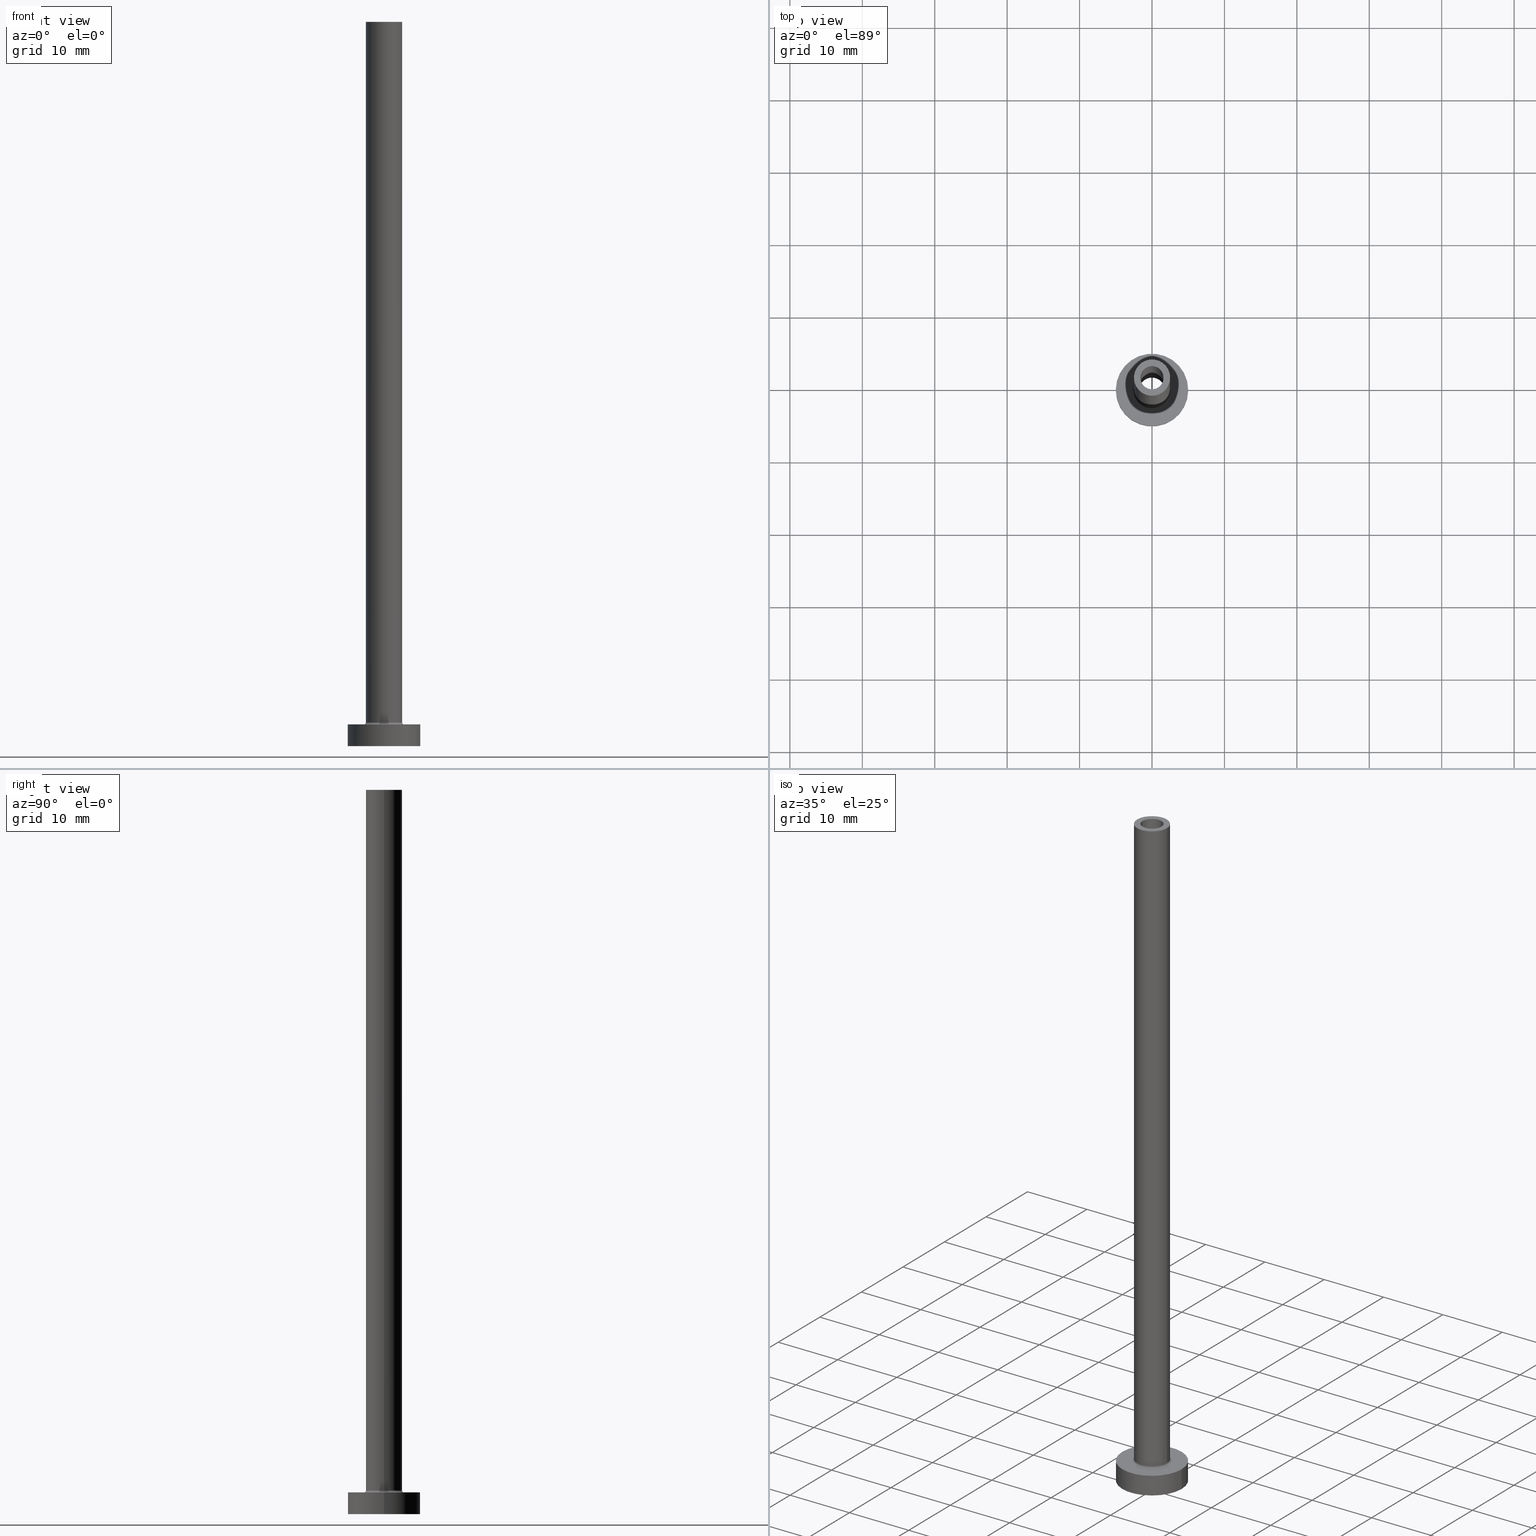
[diagram: canonical four-view strip — front | top / right | iso, engineering-drawing reading convention]
A machine part, canonical four-view strip (front | top / right | iso — engineering-drawing reading convention). The complete STEP part file that produces these views, byte-faithful:
ISO-10303-21;
HEADER;
FILE_DESCRIPTION (( 'STEP AP203' ),
    '1' );
FILE_NAME ('e2c4.STEP',
    '2023-02-13T12:03:21',
    ( '' ),
    ( '' ),
    'SwSTEP 2.0',
    'SolidWorks 2019',
    '' );
FILE_SCHEMA (( 'CONFIG_CONTROL_DESIGN' ));
ENDSEC;

DATA;
#1 = COORDINATED_UNIVERSAL_TIME_OFFSET ( 1, 0, .AHEAD. ) ;
#2 = DIRECTION ( 'NONE',  ( 1.000000000000000000, 0.000000000000000000, 0.000000000000000000 ) ) ;
#3 = AXIS2_PLACEMENT_3D ( 'NONE', #403, #211, #104 ) ;
#4 = DATE_TIME_ROLE ( 'creation_date' ) ;
#5 = APPLICATION_CONTEXT ( 'configuration controlled 3d designs of mechanical parts and assemblies' ) ;
#6 = ORIENTED_EDGE ( 'NONE', *, *, #325, .T. ) ;
#7 = PERSON_AND_ORGANIZATION ( #223, #154 ) ;
#8 = DIRECTION ( 'NONE',  ( 0.000000000000000000, 0.000000000000000000, 1.000000000000000000 ) ) ;
#9 = CARTESIAN_POINT ( 'NONE',  ( 0.000000000000000000, 0.000000000000000000, 100.0000000000000000 ) ) ;
#10 = PLANE ( 'NONE',  #70 ) ;
#11 = ORIENTED_EDGE ( 'NONE', *, *, #404, .F. ) ;
#12 = CIRCLE ( 'NONE', #27, 1.600000000000000089 ) ;
#13 = CARTESIAN_POINT ( 'NONE',  ( 1.600000000000000089, 1.959434878635764737E-16, 100.0000000000000000 ) ) ;
#14 = ORIENTED_EDGE ( 'NONE', *, *, #307, .T. ) ;
#15 = DIRECTION ( 'NONE',  ( 1.000000000000000000, 0.000000000000000000, 0.000000000000000000 ) ) ;
#16 = CARTESIAN_POINT ( 'NONE',  ( 0.000000000000000000, 0.000000000000000000, 3.000000000000000000 ) ) ;
#17 = DIRECTION ( 'NONE',  ( 0.000000000000000000, 0.000000000000000000, 1.000000000000000000 ) ) ;
#18 = AXIS2_PLACEMENT_3D ( 'NONE', #83, #49, #253 ) ;
#19 = CARTESIAN_POINT ( 'NONE',  ( -1.600000000000000089, 0.000000000000000000, 55.00000000000000711 ) ) ;
#20 = VERTEX_POINT ( 'NONE', #146 ) ;
#21 = LOCAL_TIME ( 13, 3, 21.00000000000000000, #278 ) ;
#22 = ADVANCED_FACE ( 'NONE', ( #396 ), #210, .T. ) ;
#23 = EDGE_LOOP ( 'NONE', ( #11, #257 ) ) ;
#24 = LINE ( 'NONE', #229, #262 ) ;
#25 = FACE_BOUND ( 'NONE', #184, .T. ) ;
#26 = VERTEX_POINT ( 'NONE', #82 ) ;
#27 = AXIS2_PLACEMENT_3D ( 'NONE', #130, #66, #270 ) ;
#28 = ORIENTED_EDGE ( 'NONE', *, *, #159, .T. ) ;
#29 = CC_DESIGN_DATE_AND_TIME_ASSIGNMENT ( #44, #358, ( #397 ) ) ;
#30 = ADVANCED_FACE ( 'NONE', ( #362 ), #407, .F. ) ;
#31 = FACE_OUTER_BOUND ( 'NONE', #41, .T. ) ;
#32 = CIRCLE ( 'NONE', #282, 0.2999999999999999334 ) ;
#33 = VERTEX_POINT ( 'NONE', #19 ) ;
#34 = CARTESIAN_POINT ( 'NONE',  ( -1.750000000000000000, 0.000000000000000000, 0.000000000000000000 ) ) ;
#35 = VECTOR ( 'NONE', #64, 1000.000000000000000 ) ;
#36 = CARTESIAN_POINT ( 'NONE',  ( 0.000000000000000000, 0.000000000000000000, 3.299999999999997158 ) ) ;
#37 = EDGE_CURVE ( 'NONE', #91, #33, #442, .T. ) ;
#38 = PERSON_AND_ORGANIZATION_ROLE ( 'design_supplier' ) ;
#39 = ORIENTED_EDGE ( 'NONE', *, *, #45, .F. ) ;
#40 = CIRCLE ( 'NONE', #291, 1.750000000000000000 ) ;
#41 = EDGE_LOOP ( 'NONE', ( #276, #14, #287, #68 ) ) ;
#42 = CARTESIAN_POINT ( 'NONE',  ( 0.000000000000000000, 0.000000000000000000, 100.0000000000000000 ) ) ;
#43 = VECTOR ( 'NONE', #209, 1000.000000000000000 ) ;
#44 = DATE_AND_TIME ( #393, #337 ) ;
#45 = EDGE_CURVE ( 'NONE', #20, #417, #258, .T. ) ;
#46 = ORIENTED_EDGE ( 'NONE', *, *, #413, .F. ) ;
#47 = DIRECTION ( 'NONE',  ( 1.000000000000000000, 0.000000000000000000, -0.000000000000000000 ) ) ;
#48 = ORIENTED_EDGE ( 'NONE', *, *, #325, .F. ) ;
#49 = DIRECTION ( 'NONE',  ( 0.000000000000000000, 0.000000000000000000, 1.000000000000000000 ) ) ;
#50 = VECTOR ( 'NONE', #272, 1000.000000000000000 ) ;
#51 = EDGE_CURVE ( 'NONE', #417, #20, #40, .T. ) ;
#52 = CARTESIAN_POINT ( 'NONE',  ( 5.000000000000000000, 6.123233995736766282E-16, 3.000000000000000000 ) ) ;
#53 = VERTEX_POINT ( 'NONE', #52 ) ;
#54 = CARTESIAN_POINT ( 'NONE',  ( 0.000000000000000000, 0.000000000000000000, 0.000000000000000000 ) ) ;
#55 = DIRECTION ( 'NONE',  ( 0.000000000000000000, 0.000000000000000000, 1.000000000000000000 ) ) ;
#56 = ORIENTED_EDGE ( 'NONE', *, *, #189, .T. ) ;
#57 = ADVANCED_FACE ( 'NONE', ( #114, #330 ), #119, .F. ) ;
#58 = EDGE_LOOP ( 'NONE', ( #353, #335 ) ) ;
#59 = CIRCLE ( 'NONE', #174, 2.500000000000000000 ) ;
#60 = CARTESIAN_POINT ( 'NONE',  ( 0.000000000000000000, 0.000000000000000000, 3.000000000000000000 ) ) ;
#61 = CYLINDRICAL_SURFACE ( 'NONE', #227, 1.750000000000000000 ) ;
#62 = FACE_OUTER_BOUND ( 'NONE', #222, .T. ) ;
#63 = DIRECTION ( 'NONE',  ( 0.000000000000000000, 0.000000000000000000, -1.000000000000000000 ) ) ;
#64 = DIRECTION ( 'NONE',  ( -0.000000000000000000, -0.000000000000000000, -1.000000000000000000 ) ) ;
#65 = AXIS2_PLACEMENT_3D ( 'NONE', #236, #454, #310 ) ;
#66 = DIRECTION ( 'NONE',  ( 0.000000000000000000, 0.000000000000000000, 1.000000000000000000 ) ) ;
#67 = ORIENTED_EDGE ( 'NONE', *, *, #189, .F. ) ;
#68 = ORIENTED_EDGE ( 'NONE', *, *, #428, .F. ) ;
#69 = PRODUCT_RELATED_PRODUCT_CATEGORY ( 'detail', '', ( #398 ) ) ;
#70 = AXIS2_PLACEMENT_3D ( 'NONE', #142, #394, #79 ) ;
#71 = APPROVAL_ROLE ( '' ) ;
#72 = EDGE_LOOP ( 'NONE', ( #138, #152, #401, #240 ) ) ;
#73 = EDGE_LOOP ( 'NONE', ( #161, #109 ) ) ;
#74 = AXIS2_PLACEMENT_3D ( 'NONE', #9, #360, #144 ) ;
#75 = DATE_AND_TIME ( #237, #423 ) ;
#76 = LINE ( 'NONE', #203, #43 ) ;
#77 = EDGE_LOOP ( 'NONE', ( #212, #370, #56, #100 ) ) ;
#78 = AXIS2_PLACEMENT_3D ( 'NONE', #80, #55, #365 ) ;
#79 = DIRECTION ( 'NONE',  ( 1.000000000000000000, 0.000000000000000000, -0.000000000000000000 ) ) ;
#80 = CARTESIAN_POINT ( 'NONE',  ( 0.000000000000000000, 0.000000000000000000, 0.000000000000000000 ) ) ;
#81 = CARTESIAN_POINT ( 'NONE',  ( 0.000000000000000000, 0.000000000000000000, 3.299999999999997158 ) ) ;
#82 = CARTESIAN_POINT ( 'NONE',  ( -2.500000000000000000, 0.000000000000000000, 100.0000000000000000 ) ) ;
#83 = CARTESIAN_POINT ( 'NONE',  ( 0.000000000000000000, 0.000000000000000000, 3.000000000000000000 ) ) ;
#84 = VERTEX_POINT ( 'NONE', #320 ) ;
#85 = CARTESIAN_POINT ( 'NONE',  ( 0.000000000000000000, 0.000000000000000000, 3.299999999999997158 ) ) ;
#86 = LINE ( 'NONE', #443, #435 ) ;
#87 = AXIS2_PLACEMENT_3D ( 'NONE', #341, #329, #15 ) ;
#88 = ORIENTED_EDGE ( 'NONE', *, *, #387, .F. ) ;
#89 = DIRECTION ( 'NONE',  ( -1.000000000000000000, 0.000000000000000000, 0.000000000000000000 ) ) ;
#90 = CYLINDRICAL_SURFACE ( 'NONE', #214, 2.500000000000000000 ) ;
#91 = VERTEX_POINT ( 'NONE', #409 ) ;
#92 = CARTESIAN_POINT ( 'NONE',  ( 0.000000000000000000, 0.000000000000000000, 3.000000000000000000 ) ) ;
#93 = DIRECTION ( 'NONE',  ( 1.000000000000000000, 0.000000000000000000, 0.000000000000000000 ) ) ;
#94 = ORIENTED_EDGE ( 'NONE', *, *, #283, .F. ) ;
#95 = FACE_OUTER_BOUND ( 'NONE', #175, .T. ) ;
#96 = ADVANCED_FACE ( 'NONE', ( #178 ), #288, .F. ) ;
#97 = ORIENTED_EDGE ( 'NONE', *, *, #165, .F. ) ;
#98 = CARTESIAN_POINT ( 'NONE',  ( 0.000000000000000000, 0.000000000000000000, 3.299999999999997158 ) ) ;
#99 = CIRCLE ( 'NONE', #381, 1.600000000000000089 ) ;
#100 = ORIENTED_EDGE ( 'NONE', *, *, #51, .T. ) ;
#101 = DIRECTION ( 'NONE',  ( 0.000000000000000000, 0.000000000000000000, 1.000000000000000000 ) ) ;
#102 = PRODUCT_DEFINITION ( 'NEZN�M�', '', #206, #149 ) ;
#103 = DIRECTION ( 'NONE',  ( -0.000000000000000000, -0.000000000000000000, -1.000000000000000000 ) ) ;
#104 = DIRECTION ( 'NONE',  ( -1.000000000000000000, 0.000000000000000000, 0.000000000000000000 ) ) ;
#105 = AXIS2_PLACEMENT_3D ( 'NONE', #60, #342, #228 ) ;
#106 = EDGE_CURVE ( 'NONE', #53, #416, #245, .T. ) ;
#107 = FACE_OUTER_BOUND ( 'NONE', #414, .T. ) ;
#108 = DIRECTION ( 'NONE',  ( 0.000000000000000000, 0.000000000000000000, 1.000000000000000000 ) ) ;
#109 = ORIENTED_EDGE ( 'NONE', *, *, #106, .T. ) ;
#110 = LINE ( 'NONE', #422, #50 ) ;
#111 = DIRECTION ( 'NONE',  ( -0.000000000000000000, -0.000000000000000000, -1.000000000000000000 ) ) ;
#112 = CC_DESIGN_PERSON_AND_ORGANIZATION_ASSIGNMENT ( #312, #243, ( #397 ) ) ;
#113 = ORIENTED_EDGE ( 'NONE', *, *, #139, .T. ) ;
#114 = FACE_BOUND ( 'NONE', #380, .T. ) ;
#115 = DIRECTION ( 'NONE',  ( 0.000000000000000000, -1.000000000000000000, 0.000000000000000000 ) ) ;
#116 = EDGE_LOOP ( 'NONE', ( #351, #457, #311, #46 ) ) ;
#117 = CARTESIAN_POINT ( 'NONE',  ( 2.799999999999999822, 0.000000000000000000, 3.299999999999997158 ) ) ;
#118 = DIRECTION ( 'NONE',  ( -0.000000000000000000, -0.000000000000000000, -1.000000000000000000 ) ) ;
#119 = PLANE ( 'NONE',  #266 ) ;
#120 = ORIENTED_EDGE ( 'NONE', *, *, #347, .F. ) ;
#121 = APPLICATION_PROTOCOL_DEFINITION ( 'international standard', 'config_control_design', 1994, #193 ) ;
#122 = FACE_OUTER_BOUND ( 'NONE', #444, .T. ) ;
#123 = EDGE_CURVE ( 'NONE', #260, #84, #224, .T. ) ;
#124 = VERTEX_POINT ( 'NONE', #13 ) ;
#125 = CIRCLE ( 'NONE', #352, 1.600000000000000089 ) ;
#126 = EDGE_CURVE ( 'NONE', #260, #20, #86, .T. ) ;
#127 = CARTESIAN_POINT ( 'NONE',  ( -2.799999999999999822, 3.429011037612589276E-16, 2.999999999999998668 ) ) ;
#128 = CC_DESIGN_APPROVAL ( #134, ( #206 ) ) ;
#129 = CC_DESIGN_APPROVAL ( #264, ( #102 ) ) ;
#130 = CARTESIAN_POINT ( 'NONE',  ( 0.000000000000000000, 0.000000000000000000, 55.00000000000000711 ) ) ;
#131 = PLANE ( 'NONE',  #314 ) ;
#132 = VERTEX_POINT ( 'NONE', #216 ) ;
#133 = APPROVAL_STATUS ( 'not_yet_approved' ) ;
#134 = APPROVAL ( #315, 'NEUR�EN�' ) ;
#135 = ORIENTED_EDGE ( 'NONE', *, *, #159, .F. ) ;
#136 = CIRCLE ( 'NONE', #368, 2.799999999999999822 ) ;
#137 = PERSON_AND_ORGANIZATION ( #223, #154 ) ;
#138 = ORIENTED_EDGE ( 'NONE', *, *, #387, .T. ) ;
#139 = EDGE_CURVE ( 'NONE', #331, #204, #32, .T. ) ;
#140 = MECHANICAL_CONTEXT ( 'NONE', #5, 'mechanical' ) ;
#141 = APPROVAL_DATE_TIME ( #354, #134 ) ;
#142 = CARTESIAN_POINT ( 'NONE',  ( 0.000000000000000000, 0.000000000000000000, 3.000000000000000000 ) ) ;
#143 = CARTESIAN_POINT ( 'NONE',  ( 0.000000000000000000, 0.000000000000000000, 3.000000000000000000 ) ) ;
#144 = DIRECTION ( 'NONE',  ( -1.000000000000000000, 0.000000000000000000, 0.000000000000000000 ) ) ;
#145 = EDGE_CURVE ( 'NONE', #124, #91, #99, .T. ) ;
#146 = CARTESIAN_POINT ( 'NONE',  ( 1.750000000000000000, 2.143131898507868297E-16, 0.000000000000000000 ) ) ;
#147 = AXIS2_PLACEMENT_3D ( 'NONE', #277, #103, #386 ) ;
#148 = ADVANCED_FACE ( 'NONE', ( #415 ), #61, .F. ) ;
#149 = DESIGN_CONTEXT ( 'detailed design', #193, 'design' ) ;
#150 = CARTESIAN_POINT ( 'NONE',  ( -1.600000000000000089, 0.000000000000000000, 100.0000000000000000 ) ) ;
#151 =( NAMED_UNIT ( * ) PLANE_ANGLE_UNIT ( ) SI_UNIT ( $, .RADIAN. ) );
#152 = ORIENTED_EDGE ( 'NONE', *, *, #235, .T. ) ;
#153 = EDGE_CURVE ( 'NONE', #204, #406, #136, .T. ) ;
#154 = ORGANIZATION ( 'NEUR�EN�', 'NEUR�EN�', '' ) ;
#155 = ORIENTED_EDGE ( 'NONE', *, *, #426, .T. ) ;
#156 = DIRECTION ( 'NONE',  ( -1.000000000000000000, 0.000000000000000000, 0.000000000000000000 ) ) ;
#157 = DIRECTION ( 'NONE',  ( 0.000000000000000000, 0.000000000000000000, 1.000000000000000000 ) ) ;
#158 = ORIENTED_EDGE ( 'NONE', *, *, #426, .F. ) ;
#159 = EDGE_CURVE ( 'NONE', #173, #331, #59, .T. ) ;
#160 = DIRECTION ( 'NONE',  ( 0.000000000000000000, 0.000000000000000000, 1.000000000000000000 ) ) ;
#161 = ORIENTED_EDGE ( 'NONE', *, *, #249, .T. ) ;
#162 = CIRCLE ( 'NONE', #65, 5.000000000000000000 ) ;
#163 = CARTESIAN_POINT ( 'NONE',  ( 2.799999999999999822, 0.000000000000000000, 2.999999999999998668 ) ) ;
#164 = AXIS2_PLACEMENT_3D ( 'NONE', #438, #251, #180 ) ;
#165 = EDGE_CURVE ( 'NONE', #26, #132, #167, .T. ) ;
#166 = PERSON_AND_ORGANIZATION ( #223, #154 ) ;
#167 = CIRCLE ( 'NONE', #181, 2.500000000000000000 ) ;
#168 = APPROVAL_DATE_TIME ( #75, #264 ) ;
#169 = ORIENTED_EDGE ( 'NONE', *, *, #379, .T. ) ;
#170 = CARTESIAN_POINT ( 'NONE',  ( 0.000000000000000000, 0.000000000000000000, 100.0000000000000000 ) ) ;
#171 = SECURITY_CLASSIFICATION_LEVEL ( 'unclassified' ) ;
#172 = ADVANCED_FACE ( 'NONE', ( #25, #122 ), #294, .T. ) ;
#173 = VERTEX_POINT ( 'NONE', #301 ) ;
#174 = AXIS2_PLACEMENT_3D ( 'NONE', #98, #17, #192 ) ;
#175 = EDGE_LOOP ( 'NONE', ( #430, #97, #238, #28 ) ) ;
#176 = CC_DESIGN_PERSON_AND_ORGANIZATION_ASSIGNMENT ( #434, #38, ( #206 ) ) ;
#177 = EDGE_CURVE ( 'NONE', #132, #331, #255, .T. ) ;
#178 = FACE_OUTER_BOUND ( 'NONE', #72, .T. ) ;
#179 = DIRECTION ( 'NONE',  ( 1.000000000000000000, 0.000000000000000000, 0.000000000000000000 ) ) ;
#180 = DIRECTION ( 'NONE',  ( 1.000000000000000000, 0.000000000000000000, 0.000000000000000000 ) ) ;
#181 = AXIS2_PLACEMENT_3D ( 'NONE', #185, #332, #343 ) ;
#182 = CARTESIAN_POINT ( 'NONE',  ( 1.600000000000000089, 1.959434878635764737E-16, 55.00000000000000711 ) ) ;
#183 = DIRECTION ( 'NONE',  ( -1.000000000000000000, 0.000000000000000000, 0.000000000000000000 ) ) ;
#184 = EDGE_LOOP ( 'NONE', ( #88, #373 ) ) ;
#185 = CARTESIAN_POINT ( 'NONE',  ( 0.000000000000000000, 0.000000000000000000, 100.0000000000000000 ) ) ;
#186 = APPROVAL_STATUS ( 'not_yet_approved' ) ;
#187 = DIRECTION ( 'NONE',  ( 1.000000000000000000, 0.000000000000000000, 0.000000000000000000 ) ) ;
#188 = CARTESIAN_POINT ( 'NONE',  ( 2.500000000000000000, 3.061616997868382648E-16, 100.0000000000000000 ) ) ;
#189 = EDGE_CURVE ( 'NONE', #84, #417, #24, .T. ) ;
#190 = CIRCLE ( 'NONE', #419, 5.000000000000000000 ) ;
#191 = ORIENTED_EDGE ( 'NONE', *, *, #379, .F. ) ;
#192 = DIRECTION ( 'NONE',  ( 1.000000000000000000, 0.000000000000000000, 0.000000000000000000 ) ) ;
#193 = APPLICATION_CONTEXT ( 'configuration controlled 3d designs of mechanical parts and assemblies' ) ;
#194 = AXIS2_PLACEMENT_3D ( 'NONE', #254, #372, #179 ) ;
#195 = ORIENTED_EDGE ( 'NONE', *, *, #433, .F. ) ;
#196 = AXIS2_PLACEMENT_3D ( 'NONE', #336, #160, #448 ) ;
#197 = CARTESIAN_POINT ( 'NONE',  ( 0.000000000000000000, 0.000000000000000000, 100.0000000000000000 ) ) ;
#198 = ADVANCED_FACE ( 'NONE', ( #62 ), #265, .F. ) ;
#199 = EDGE_LOOP ( 'NONE', ( #195, #248, #6, #120 ) ) ;
#200 = ORIENTED_EDGE ( 'NONE', *, *, #45, .T. ) ;
#201 = MANIFOLD_SOLID_BREP ( 'Odebrat vysunut�m4', #376 ) ;
#202 = PERSON_AND_ORGANIZATION_ROLE ( 'creator' ) ;
#203 = CARTESIAN_POINT ( 'NONE',  ( 5.000000000000000000, 6.123233995736766282E-16, 3.000000000000000000 ) ) ;
#204 = VERTEX_POINT ( 'NONE', #163 ) ;
#205 = PERSON_AND_ORGANIZATION_ROLE ( 'design_owner' ) ;
#206 = PRODUCT_DEFINITION_FORMATION_WITH_SPECIFIED_SOURCE ( 'LIBOVOLN�', '', #398, .NOT_KNOWN. ) ;
#207 = CC_DESIGN_SECURITY_CLASSIFICATION ( #397, ( #206 ) ) ;
#208 = ADVANCED_FACE ( 'NONE', ( #306 ), #297, .T. ) ;
#209 = DIRECTION ( 'NONE',  ( -0.000000000000000000, -0.000000000000000000, -1.000000000000000000 ) ) ;
#210 = CYLINDRICAL_SURFACE ( 'NONE', #230, 5.000000000000000000 ) ;
#211 = DIRECTION ( 'NONE',  ( 0.000000000000000000, 0.000000000000000000, -1.000000000000000000 ) ) ;
#212 = ORIENTED_EDGE ( 'NONE', *, *, #126, .F. ) ;
#213 = AXIS2_PLACEMENT_3D ( 'NONE', #85, #364, #319 ) ;
#214 = AXIS2_PLACEMENT_3D ( 'NONE', #42, #111, #156 ) ;
#215 = DIRECTION ( 'NONE',  ( 1.000000000000000000, 0.000000000000000000, 0.000000000000000000 ) ) ;
#216 = CARTESIAN_POINT ( 'NONE',  ( 2.500000000000000000, 3.061616997868382648E-16, 100.0000000000000000 ) ) ;
#217 = CC_DESIGN_DATE_AND_TIME_ASSIGNMENT ( #271, #4, ( #102 ) ) ;
#218 = DIRECTION ( 'NONE',  ( -0.000000000000000000, -0.000000000000000000, -1.000000000000000000 ) ) ;
#219 = EDGE_LOOP ( 'NONE', ( #158, #48, #113, #191 ) ) ;
#220 =( LENGTH_UNIT ( ) NAMED_UNIT ( * ) SI_UNIT ( .MILLI., .METRE. ) );
#221 = DIRECTION ( 'NONE',  ( -1.000000000000000000, 0.000000000000000000, 0.000000000000000000 ) ) ;
#222 = EDGE_LOOP ( 'NONE', ( #388, #355, #200, #67 ) ) ;
#223 = PERSON ( 'NEUR�EN�', 'NEUR�EN�', 'NEUR�EN�', ('NEUR�EN�'), ('NEUR�EN�'), ('NEUR�EN�') ) ;
#224 = CIRCLE ( 'NONE', #164, 1.750000000000000000 ) ;
#225 = ORIENTED_EDGE ( 'NONE', *, *, #51, .F. ) ;
#226 = DIRECTION ( 'NONE',  ( 1.000000000000000000, 0.000000000000000000, -0.000000000000000000 ) ) ;
#227 = AXIS2_PLACEMENT_3D ( 'NONE', #384, #63, #89 ) ;
#228 = DIRECTION ( 'NONE',  ( 1.000000000000000000, 0.000000000000000000, 0.000000000000000000 ) ) ;
#229 = CARTESIAN_POINT ( 'NONE',  ( -1.750000000000000000, 0.000000000000000000, 59.94974746830583712 ) ) ;
#230 = AXIS2_PLACEMENT_3D ( 'NONE', #143, #431, #221 ) ;
#231 = APPROVAL ( #133, 'NEUR�EN�' ) ;
#232 = ORIENTED_EDGE ( 'NONE', *, *, #165, .T. ) ;
#233 = VECTOR ( 'NONE', #327, 1000.000000000000000 ) ;
#234 = FACE_BOUND ( 'NONE', #58, .T. ) ;
#235 = EDGE_CURVE ( 'NONE', #124, #298, #289, .T. ) ;
#236 = CARTESIAN_POINT ( 'NONE',  ( 0.000000000000000000, 0.000000000000000000, 0.000000000000000000 ) ) ;
#237 = CALENDAR_DATE ( 2023, 13, 2 ) ;
#238 = ORIENTED_EDGE ( 'NONE', *, *, #347, .T. ) ;
#239 = AXIS2_PLACEMENT_3D ( 'NONE', #405, #334, #293 ) ;
#240 = ORIENTED_EDGE ( 'NONE', *, *, #37, .F. ) ;
#241 = DIRECTION ( 'NONE',  ( 0.000000000000000000, 0.000000000000000000, 1.000000000000000000 ) ) ;
#242 = EDGE_LOOP ( 'NONE', ( #135, #155, #410, #317 ) ) ;
#243 = PERSON_AND_ORGANIZATION_ROLE ( 'classification_officer' ) ;
#244 = EDGE_LOOP ( 'NONE', ( #279, #328, #453, #427 ) ) ;
#245 = CIRCLE ( 'NONE', #18, 5.000000000000000000 ) ;
#246 = CARTESIAN_POINT ( 'NONE',  ( -2.500000000000000000, 0.000000000000000000, 100.0000000000000000 ) ) ;
#247 = APPROVAL_PERSON_ORGANIZATION ( #137, #134, #71 ) ;
#248 = ORIENTED_EDGE ( 'NONE', *, *, #177, .T. ) ;
#249 = EDGE_CURVE ( 'NONE', #416, #53, #190, .T. ) ;
#250 = DIRECTION ( 'NONE',  ( 1.000000000000000000, 0.000000000000000000, 0.000000000000000000 ) ) ;
#251 = DIRECTION ( 'NONE',  ( 0.000000000000000000, 0.000000000000000000, 1.000000000000000000 ) ) ;
#252 = VECTOR ( 'NONE', #361, 1000.000000000000000 ) ;
#253 = DIRECTION ( 'NONE',  ( 1.000000000000000000, 0.000000000000000000, 0.000000000000000000 ) ) ;
#254 = CARTESIAN_POINT ( 'NONE',  ( 0.000000000000000000, 0.000000000000000000, 55.00000000000000711 ) ) ;
#255 = LINE ( 'NONE', #188, #35 ) ;
#256 = EDGE_CURVE ( 'NONE', #395, #273, #269, .T. ) ;
#257 = ORIENTED_EDGE ( 'NONE', *, *, #256, .F. ) ;
#258 = CIRCLE ( 'NONE', #350, 1.750000000000000000 ) ;
#259 = EDGE_CURVE ( 'NONE', #33, #298, #451, .T. ) ;
#260 = VERTEX_POINT ( 'NONE', #299 ) ;
#261 = APPROVAL_DATE_TIME ( #377, #231 ) ;
#262 = VECTOR ( 'NONE', #383, 1000.000000000000000 ) ;
#263 = DIRECTION ( 'NONE',  ( -1.000000000000000000, 0.000000000000000000, 0.000000000000000000 ) ) ;
#264 = APPROVAL ( #186, 'NEUR�EN�' ) ;
#265 = CYLINDRICAL_SURFACE ( 'NONE', #441, 1.750000000000000000 ) ;
#266 = AXIS2_PLACEMENT_3D ( 'NONE', #285, #326, #47 ) ;
#267 = ORIENTED_EDGE ( 'NONE', *, *, #123, .F. ) ;
#268 = DIRECTION ( 'NONE',  ( -1.000000000000000000, 1.224646799147353207E-16, 0.000000000000000000 ) ) ;
#269 = CIRCLE ( 'NONE', #78, 5.000000000000000000 ) ;
#270 = DIRECTION ( 'NONE',  ( 1.000000000000000000, 0.000000000000000000, 0.000000000000000000 ) ) ;
#271 = DATE_AND_TIME ( #313, #399 ) ;
#272 = DIRECTION ( 'NONE',  ( -0.000000000000000000, -0.000000000000000000, -1.000000000000000000 ) ) ;
#273 = VERTEX_POINT ( 'NONE', #402 ) ;
#274 = APPROVAL_ROLE ( '' ) ;
#275 =( GEOMETRIC_REPRESENTATION_CONTEXT ( 3 ) GLOBAL_UNCERTAINTY_ASSIGNED_CONTEXT ( ( #436 ) ) GLOBAL_UNIT_ASSIGNED_CONTEXT ( ( #220, #151, #280 ) ) REPRESENTATION_CONTEXT ( 'NONE', 'WORKASPACE' ) );
#276 = ORIENTED_EDGE ( 'NONE', *, *, #106, .F. ) ;
#277 = CARTESIAN_POINT ( 'NONE',  ( 0.000000000000000000, 0.000000000000000000, 3.000000000000000000 ) ) ;
#278 = COORDINATED_UNIVERSAL_TIME_OFFSET ( 1, 0, .AHEAD. ) ;
#279 = ORIENTED_EDGE ( 'NONE', *, *, #307, .F. ) ;
#280 =( NAMED_UNIT ( * ) SI_UNIT ( $, .STERADIAN. ) SOLID_ANGLE_UNIT ( ) );
#281 = COORDINATED_UNIVERSAL_TIME_OFFSET ( 1, 0, .AHEAD. ) ;
#282 = AXIS2_PLACEMENT_3D ( 'NONE', #117, #115, #412 ) ;
#283 = EDGE_CURVE ( 'NONE', #84, #260, #338, .T. ) ;
#284 = CIRCLE ( 'NONE', #105, 2.799999999999999822 ) ;
#285 = CARTESIAN_POINT ( 'NONE',  ( 0.000000000000000000, 0.000000000000000000, 0.000000000000000000 ) ) ;
#286 = FACE_BOUND ( 'NONE', #323, .T. ) ;
#287 = ORIENTED_EDGE ( 'NONE', *, *, #256, .T. ) ;
#288 = CYLINDRICAL_SURFACE ( 'NONE', #74, 1.600000000000000089 ) ;
#289 = LINE ( 'NONE', #339, #233 ) ;
#290 = APPLICATION_PROTOCOL_DEFINITION ( 'international standard', 'config_control_design', 1994, #5 ) ;
#291 = AXIS2_PLACEMENT_3D ( 'NONE', #54, #408, #215 ) ;
#292 = CARTESIAN_POINT ( 'NONE',  ( 0.000000000000000000, 0.000000000000000000, 0.000000000000000000 ) ) ;
#293 = DIRECTION ( 'NONE',  ( 1.000000000000000000, 0.000000000000000000, 0.000000000000000000 ) ) ;
#294 = PLANE ( 'NONE',  #196 ) ;
#295 = CC_DESIGN_PERSON_AND_ORGANIZATION_ASSIGNMENT ( #446, #205, ( #398 ) ) ;
#296 = AXIS2_PLACEMENT_3D ( 'NONE', #378, #218, #183 ) ;
#297 = CYLINDRICAL_SURFACE ( 'NONE', #296, 2.500000000000000000 ) ;
#298 = VERTEX_POINT ( 'NONE', #182 ) ;
#299 = CARTESIAN_POINT ( 'NONE',  ( 1.750000000000000000, 2.143131898507868297E-16, 55.00000000000000711 ) ) ;
#300 = DIRECTION ( 'NONE',  ( 1.000000000000000000, 0.000000000000000000, 0.000000000000000000 ) ) ;
#301 = CARTESIAN_POINT ( 'NONE',  ( -2.500000000000000000, 0.000000000000000000, 3.299999999999997158 ) ) ;
#302 = CIRCLE ( 'NONE', #425, 2.500000000000000000 ) ;
#303 = PRODUCT_DEFINITION_SHAPE ( 'NONE', 'NONE',  #102 ) ;
#304 = ADVANCED_FACE ( 'NONE', ( #286, #321 ), #10, .T. ) ;
#305 = SHAPE_DEFINITION_REPRESENTATION ( #303, #344 ) ;
#306 = FACE_OUTER_BOUND ( 'NONE', #199, .T. ) ;
#307 = EDGE_CURVE ( 'NONE', #53, #395, #76, .T. ) ;
#308 = CALENDAR_DATE ( 2023, 13, 2 ) ;
#309 = CIRCLE ( 'NONE', #449, 2.500000000000000000 ) ;
#310 = DIRECTION ( 'NONE',  ( 1.000000000000000000, 0.000000000000000000, 0.000000000000000000 ) ) ;
#311 = ORIENTED_EDGE ( 'NONE', *, *, #37, .T. ) ;
#312 = PERSON_AND_ORGANIZATION ( #223, #154 ) ;
#313 = CALENDAR_DATE ( 2023, 13, 2 ) ;
#314 = AXIS2_PLACEMENT_3D ( 'NONE', #424, #450, #226 ) ;
#315 = APPROVAL_STATUS ( 'not_yet_approved' ) ;
#316 = DIRECTION ( 'NONE',  ( 1.000000000000000000, 0.000000000000000000, 0.000000000000000000 ) ) ;
#317 = ORIENTED_EDGE ( 'NONE', *, *, #139, .F. ) ;
#318 = FACE_OUTER_BOUND ( 'NONE', #116, .T. ) ;
#319 = DIRECTION ( 'NONE',  ( 1.000000000000000000, 0.000000000000000000, 0.000000000000000000 ) ) ;
#320 = CARTESIAN_POINT ( 'NONE',  ( -1.750000000000000000, 0.000000000000000000, 55.00000000000000711 ) ) ;
#321 = FACE_OUTER_BOUND ( 'NONE', #73, .T. ) ;
#322 = CARTESIAN_POINT ( 'NONE',  ( 2.500000000000000000, 3.061616997868382648E-16, 3.299999999999997158 ) ) ;
#323 = EDGE_LOOP ( 'NONE', ( #447, #169 ) ) ;
#324 = AXIS2_PLACEMENT_3D ( 'NONE', #36, #108, #349 ) ;
#325 = EDGE_CURVE ( 'NONE', #331, #173, #309, .T. ) ;
#326 = DIRECTION ( 'NONE',  ( 0.000000000000000000, 0.000000000000000000, 1.000000000000000000 ) ) ;
#327 = DIRECTION ( 'NONE',  ( 0.000000000000000000, 0.000000000000000000, -1.000000000000000000 ) ) ;
#328 = ORIENTED_EDGE ( 'NONE', *, *, #249, .F. ) ;
#329 = DIRECTION ( 'NONE',  ( 0.000000000000000000, 0.000000000000000000, 1.000000000000000000 ) ) ;
#330 = FACE_OUTER_BOUND ( 'NONE', #23, .T. ) ;
#331 = VERTEX_POINT ( 'NONE', #322 ) ;
#332 = DIRECTION ( 'NONE',  ( 0.000000000000000000, 0.000000000000000000, 1.000000000000000000 ) ) ;
#333 = COORDINATED_UNIVERSAL_TIME_OFFSET ( 1, 0, .AHEAD. ) ;
#334 = DIRECTION ( 'NONE',  ( 0.000000000000000000, 0.000000000000000000, 1.000000000000000000 ) ) ;
#335 = ORIENTED_EDGE ( 'NONE', *, *, #413, .T. ) ;
#336 = CARTESIAN_POINT ( 'NONE',  ( 0.000000000000000000, 0.000000000000000000, 100.0000000000000000 ) ) ;
#337 = LOCAL_TIME ( 13, 3, 21.00000000000000000, #1 ) ;
#338 = CIRCLE ( 'NONE', #194, 1.750000000000000000 ) ;
#339 = CARTESIAN_POINT ( 'NONE',  ( 1.600000000000000089, 1.959434878635764737E-16, 100.0000000000000000 ) ) ;
#340 = DIRECTION ( 'NONE',  ( 1.000000000000000000, 0.000000000000000000, 0.000000000000000000 ) ) ;
#341 = CARTESIAN_POINT ( 'NONE',  ( 0.000000000000000000, 0.000000000000000000, 0.000000000000000000 ) ) ;
#342 = DIRECTION ( 'NONE',  ( -0.000000000000000000, -0.000000000000000000, -1.000000000000000000 ) ) ;
#343 = DIRECTION ( 'NONE',  ( 1.000000000000000000, 0.000000000000000000, 0.000000000000000000 ) ) ;
#344 = ADVANCED_BREP_SHAPE_REPRESENTATION ( 'e2c4', ( #201, #87 ), #275 ) ;
#345 = DIRECTION ( 'NONE',  ( 0.000000000000000000, 0.000000000000000000, -1.000000000000000000 ) ) ;
#346 = CARTESIAN_POINT ( 'NONE',  ( 0.000000000000000000, 0.000000000000000000, 59.94974746830583712 ) ) ;
#347 = EDGE_CURVE ( 'NONE', #26, #173, #437, .T. ) ;
#348 = CARTESIAN_POINT ( 'NONE',  ( -5.000000000000000000, 0.000000000000000000, 3.000000000000000000 ) ) ;
#349 = DIRECTION ( 'NONE',  ( 1.000000000000000000, 0.000000000000000000, 0.000000000000000000 ) ) ;
#350 = AXIS2_PLACEMENT_3D ( 'NONE', #292, #118, #250 ) ;
#351 = ORIENTED_EDGE ( 'NONE', *, *, #235, .F. ) ;
#352 = AXIS2_PLACEMENT_3D ( 'NONE', #170, #356, #2 ) ;
#353 = ORIENTED_EDGE ( 'NONE', *, *, #259, .T. ) ;
#354 = DATE_AND_TIME ( #308, #21 ) ;
#355 = ORIENTED_EDGE ( 'NONE', *, *, #126, .T. ) ;
#356 = DIRECTION ( 'NONE',  ( 0.000000000000000000, 0.000000000000000000, 1.000000000000000000 ) ) ;
#357 = COORDINATED_UNIVERSAL_TIME_OFFSET ( 1, 0, .AHEAD. ) ;
#358 = DATE_TIME_ROLE ( 'classification_date' ) ;
#359 = APPROVAL_PERSON_ORGANIZATION ( #411, #264, #371 ) ;
#360 = DIRECTION ( 'NONE',  ( 0.000000000000000000, 0.000000000000000000, -1.000000000000000000 ) ) ;
#361 = DIRECTION ( 'NONE',  ( -0.000000000000000000, -0.000000000000000000, -1.000000000000000000 ) ) ;
#362 = FACE_OUTER_BOUND ( 'NONE', #242, .T. ) ;
#363 = ADVANCED_FACE ( 'NONE', ( #318 ), #440, .F. ) ;
#364 = DIRECTION ( 'NONE',  ( 0.000000000000000000, 0.000000000000000000, 1.000000000000000000 ) ) ;
#365 = DIRECTION ( 'NONE',  ( 1.000000000000000000, 0.000000000000000000, 0.000000000000000000 ) ) ;
#366 = ORIENTED_EDGE ( 'NONE', *, *, #433, .T. ) ;
#367 = TOROIDAL_SURFACE ( 'NONE', #324, 2.799999999999999822, 0.2999999999999999889 ) ;
#368 = AXIS2_PLACEMENT_3D ( 'NONE', #92, #374, #300 ) ;
#369 = DIRECTION ( 'NONE',  ( 0.000000000000000000, 0.000000000000000000, -1.000000000000000000 ) ) ;
#370 = ORIENTED_EDGE ( 'NONE', *, *, #123, .T. ) ;
#371 = APPROVAL_ROLE ( '' ) ;
#372 = DIRECTION ( 'NONE',  ( 0.000000000000000000, 0.000000000000000000, 1.000000000000000000 ) ) ;
#373 = ORIENTED_EDGE ( 'NONE', *, *, #145, .F. ) ;
#374 = DIRECTION ( 'NONE',  ( -0.000000000000000000, -0.000000000000000000, -1.000000000000000000 ) ) ;
#375 = ADVANCED_FACE ( 'NONE', ( #234, #107 ), #131, .F. ) ;
#376 = CLOSED_SHELL ( 'NONE', ( #96, #198, #30, #208, #392, #22, #304, #57, #455, #172, #385, #148, #375, #363 ) ) ;
#377 = DATE_AND_TIME ( #452, #439 ) ;
#378 = CARTESIAN_POINT ( 'NONE',  ( 0.000000000000000000, 0.000000000000000000, 100.0000000000000000 ) ) ;
#379 = EDGE_CURVE ( 'NONE', #406, #204, #284, .T. ) ;
#380 = EDGE_LOOP ( 'NONE', ( #225, #39 ) ) ;
#381 = AXIS2_PLACEMENT_3D ( 'NONE', #432, #101, #340 ) ;
#382 = CC_DESIGN_PERSON_AND_ORGANIZATION_ASSIGNMENT ( #429, #459, ( #206 ) ) ;
#383 = DIRECTION ( 'NONE',  ( 0.000000000000000000, 0.000000000000000000, -1.000000000000000000 ) ) ;
#384 = CARTESIAN_POINT ( 'NONE',  ( 0.000000000000000000, 0.000000000000000000, 59.94974746830583712 ) ) ;
#385 = ADVANCED_FACE ( 'NONE', ( #420 ), #367, .F. ) ;
#386 = DIRECTION ( 'NONE',  ( -1.000000000000000000, 0.000000000000000000, 0.000000000000000000 ) ) ;
#387 = EDGE_CURVE ( 'NONE', #91, #124, #125, .T. ) ;
#388 = ORIENTED_EDGE ( 'NONE', *, *, #283, .T. ) ;
#389 = DIRECTION ( 'NONE',  ( 1.224646799147353207E-16, 1.000000000000000000, -0.000000000000000000 ) ) ;
#390 = CIRCLE ( 'NONE', #456, 0.2999999999999999334 ) ;
#391 = CARTESIAN_POINT ( 'NONE',  ( 5.000000000000000000, 6.123233995736766282E-16, 0.000000000000000000 ) ) ;
#392 = ADVANCED_FACE ( 'NONE', ( #31 ), #460, .T. ) ;
#393 = CALENDAR_DATE ( 2023, 13, 2 ) ;
#394 = DIRECTION ( 'NONE',  ( 0.000000000000000000, 0.000000000000000000, 1.000000000000000000 ) ) ;
#395 = VERTEX_POINT ( 'NONE', #391 ) ;
#396 = FACE_OUTER_BOUND ( 'NONE', #244, .T. ) ;
#397 = SECURITY_CLASSIFICATION ( '', '', #171 ) ;
#398 = PRODUCT ( 'e2c4', 'e2c4', '', ( #140 ) ) ;
#399 = LOCAL_TIME ( 13, 3, 21.00000000000000000, #357 ) ;
#400 = CC_DESIGN_APPROVAL ( #231, ( #397 ) ) ;
#401 = ORIENTED_EDGE ( 'NONE', *, *, #259, .F. ) ;
#402 = CARTESIAN_POINT ( 'NONE',  ( -5.000000000000000000, 0.000000000000000000, 0.000000000000000000 ) ) ;
#403 = CARTESIAN_POINT ( 'NONE',  ( 0.000000000000000000, 0.000000000000000000, 100.0000000000000000 ) ) ;
#404 = EDGE_CURVE ( 'NONE', #273, #395, #162, .T. ) ;
#405 = CARTESIAN_POINT ( 'NONE',  ( 0.000000000000000000, 0.000000000000000000, 55.00000000000000711 ) ) ;
#406 = VERTEX_POINT ( 'NONE', #127 ) ;
#407 = TOROIDAL_SURFACE ( 'NONE', #213, 2.799999999999999822, 0.2999999999999999889 ) ;
#408 = DIRECTION ( 'NONE',  ( -0.000000000000000000, -0.000000000000000000, -1.000000000000000000 ) ) ;
#409 = CARTESIAN_POINT ( 'NONE',  ( -1.600000000000000089, 0.000000000000000000, 100.0000000000000000 ) ) ;
#410 = ORIENTED_EDGE ( 'NONE', *, *, #153, .F. ) ;
#411 = PERSON_AND_ORGANIZATION ( #223, #154 ) ;
#412 = DIRECTION ( 'NONE',  ( 0.000000000000000000, 0.000000000000000000, -1.000000000000000000 ) ) ;
#413 = EDGE_CURVE ( 'NONE', #298, #33, #12, .T. ) ;
#414 = EDGE_LOOP ( 'NONE', ( #94, #267 ) ) ;
#415 = FACE_OUTER_BOUND ( 'NONE', #77, .T. ) ;
#416 = VERTEX_POINT ( 'NONE', #348 ) ;
#417 = VERTEX_POINT ( 'NONE', #34 ) ;
#418 = CC_DESIGN_PERSON_AND_ORGANIZATION_ASSIGNMENT ( #166, #202, ( #102 ) ) ;
#419 = AXIS2_PLACEMENT_3D ( 'NONE', #16, #157, #187 ) ;
#420 = FACE_OUTER_BOUND ( 'NONE', #219, .T. ) ;
#421 = APPROVAL_PERSON_ORGANIZATION ( #7, #231, #274 ) ;
#422 = CARTESIAN_POINT ( 'NONE',  ( -5.000000000000000000, 0.000000000000000000, 3.000000000000000000 ) ) ;
#423 = LOCAL_TIME ( 13, 3, 21.00000000000000000, #333 ) ;
#424 = CARTESIAN_POINT ( 'NONE',  ( 0.000000000000000000, 0.000000000000000000, 55.00000000000000711 ) ) ;
#425 = AXIS2_PLACEMENT_3D ( 'NONE', #197, #241, #93 ) ;
#426 = EDGE_CURVE ( 'NONE', #173, #406, #390, .T. ) ;
#427 = ORIENTED_EDGE ( 'NONE', *, *, #404, .T. ) ;
#428 = EDGE_CURVE ( 'NONE', #416, #273, #110, .T. ) ;
#429 = PERSON_AND_ORGANIZATION ( #223, #154 ) ;
#430 = ORIENTED_EDGE ( 'NONE', *, *, #177, .F. ) ;
#431 = DIRECTION ( 'NONE',  ( -0.000000000000000000, -0.000000000000000000, -1.000000000000000000 ) ) ;
#432 = CARTESIAN_POINT ( 'NONE',  ( 0.000000000000000000, 0.000000000000000000, 100.0000000000000000 ) ) ;
#433 = EDGE_CURVE ( 'NONE', #132, #26, #302, .T. ) ;
#434 = PERSON_AND_ORGANIZATION ( #223, #154 ) ;
#435 = VECTOR ( 'NONE', #369, 1000.000000000000000 ) ;
#436 = UNCERTAINTY_MEASURE_WITH_UNIT (LENGTH_MEASURE( 1.000000000000000082E-05 ), #220, 'distance_accuracy_value', 'NONE');
#437 = LINE ( 'NONE', #246, #252 ) ;
#438 = CARTESIAN_POINT ( 'NONE',  ( 0.000000000000000000, 0.000000000000000000, 55.00000000000000711 ) ) ;
#439 = LOCAL_TIME ( 13, 3, 21.00000000000000000, #281 ) ;
#440 = CYLINDRICAL_SURFACE ( 'NONE', #3, 1.600000000000000089 ) ;
#441 = AXIS2_PLACEMENT_3D ( 'NONE', #346, #345, #263 ) ;
#442 = LINE ( 'NONE', #150, #461 ) ;
#443 = CARTESIAN_POINT ( 'NONE',  ( 1.750000000000000000, 2.143131898507868297E-16, 59.94974746830583712 ) ) ;
#444 = EDGE_LOOP ( 'NONE', ( #232, #366 ) ) ;
#445 = DIRECTION ( 'NONE',  ( 0.000000000000000000, 0.000000000000000000, -1.000000000000000000 ) ) ;
#446 = PERSON_AND_ORGANIZATION ( #223, #154 ) ;
#447 = ORIENTED_EDGE ( 'NONE', *, *, #153, .T. ) ;
#448 = DIRECTION ( 'NONE',  ( 1.000000000000000000, 0.000000000000000000, -0.000000000000000000 ) ) ;
#449 = AXIS2_PLACEMENT_3D ( 'NONE', #81, #8, #316 ) ;
#450 = DIRECTION ( 'NONE',  ( 0.000000000000000000, 0.000000000000000000, 1.000000000000000000 ) ) ;
#451 = CIRCLE ( 'NONE', #239, 1.600000000000000089 ) ;
#452 = CALENDAR_DATE ( 2023, 13, 2 ) ;
#453 = ORIENTED_EDGE ( 'NONE', *, *, #428, .T. ) ;
#454 = DIRECTION ( 'NONE',  ( 0.000000000000000000, 0.000000000000000000, 1.000000000000000000 ) ) ;
#455 = ADVANCED_FACE ( 'NONE', ( #95 ), #90, .T. ) ;
#456 = AXIS2_PLACEMENT_3D ( 'NONE', #458, #389, #268 ) ;
#457 = ORIENTED_EDGE ( 'NONE', *, *, #145, .T. ) ;
#458 = CARTESIAN_POINT ( 'NONE',  ( -2.799999999999999822, 3.429011037612588783E-16, 3.299999999999997158 ) ) ;
#459 = PERSON_AND_ORGANIZATION_ROLE ( 'creator' ) ;
#460 = CYLINDRICAL_SURFACE ( 'NONE', #147, 5.000000000000000000 ) ;
#461 = VECTOR ( 'NONE', #445, 1000.000000000000000 ) ;
ENDSEC;
END-ISO-10303-21;
